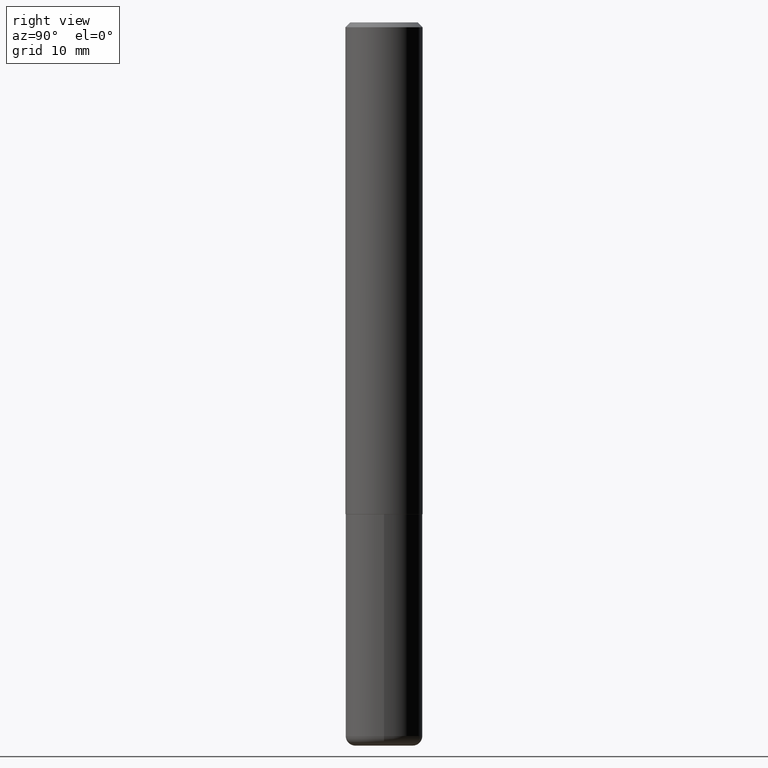
[diagram: clean part render]
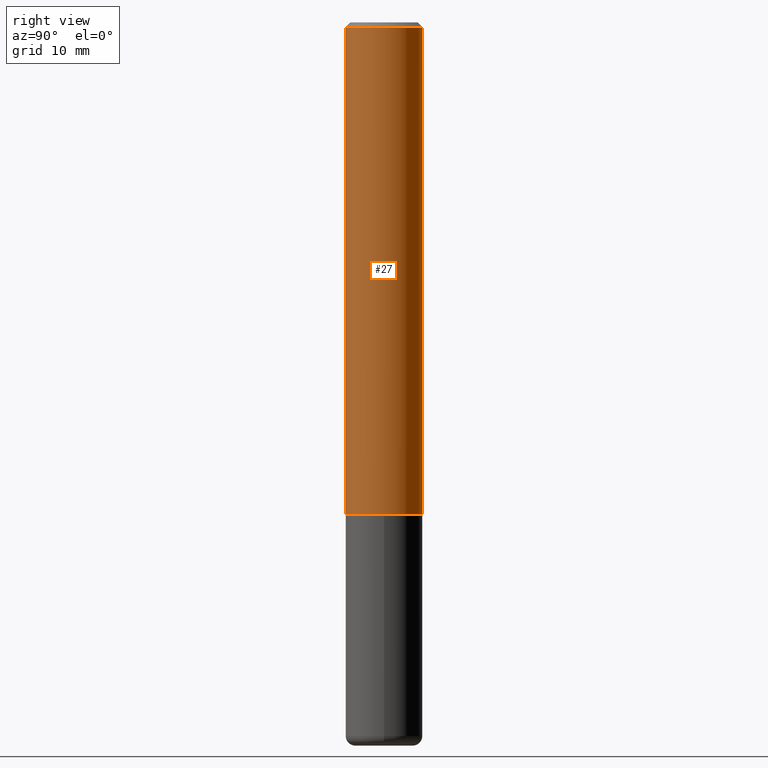
[diagram: same view with one face highlighted and labeled with its STEP entity id]
A machine part, right view. The second image highlights one B-rep face of the part: STEP entity #27.
In plain terms, the highlighted cylindrical surface (partial cylindrical patch) has radius 4.0005 mm, axis along (-0, 0, 1).
Its self-contained STEP definition (entity closure, byte-faithful):
#11 = LINE ( 'NONE', #173, #291 ) ;
#12 = VERTEX_POINT ( 'NONE', #414 ) ;
#25 = EDGE_CURVE ( 'NONE', #12, #211, #407, .T. ) ;
#26 = CARTESIAN_POINT ( 'NONE',  ( 0.000000000000000000, 0.000000000000000000, 0.000000000000000000 ) ) ;
#27 = ADVANCED_FACE ( 'NONE', ( #54 ), #309, .T. ) ;
#37 = ORIENTED_EDGE ( 'NONE', *, *, #248, .F. ) ;
#46 = DIRECTION ( 'NONE',  ( -6.982962677686264344E-15, -1.000000000000000000, 3.496114991891764787E-15 ) ) ;
#50 = CARTESIAN_POINT ( 'NONE',  ( 1.119104808822183439E-15, 0.1574999999999932287, -2.006899999999999906 ) ) ;
#52 = CARTESIAN_POINT ( 'NONE',  ( 4.889459656631096617E-31, -6.985079194424830218E-17, -0.02000000000000003511 ) ) ;
#54 = FACE_OUTER_BOUND ( 'NONE', #390, .T. ) ;
#57 = DIRECTION ( 'NONE',  ( -2.444729828315544280E-29, 3.492539597212409932E-15, 1.000000000000000000 ) ) ;
#72 = CARTESIAN_POINT ( 'NONE',  ( 1.099816621735587480E-15, 0.1574999999999999456, -0.02000000000000058328 ) ) ;
#119 = VECTOR ( 'NONE', #271, 39.37007874015748143 ) ;
#129 = LINE ( 'NONE', #237, #119 ) ;
#153 = VERTEX_POINT ( 'NONE', #232 ) ;
#156 = EDGE_CURVE ( 'NONE', #211, #204, #11, .T. ) ;
#158 = ORIENTED_EDGE ( 'NONE', *, *, #399, .F. ) ;
#168 = AXIS2_PLACEMENT_3D ( 'NONE', #386, #216, #341 ) ;
#173 = CARTESIAN_POINT ( 'NONE',  ( 1.119104808822158392E-15, 0.1575000000000001399, -5.500749865609550376E-16 ) ) ;
#204 = VERTEX_POINT ( 'NONE', #72 ) ;
#211 = VERTEX_POINT ( 'NONE', #50 ) ;
#216 = DIRECTION ( 'NONE',  ( -2.444729828315544280E-29, 3.492539597212409932E-15, 1.000000000000000000 ) ) ;
#232 = CARTESIAN_POINT ( 'NONE',  ( -1.080528434649015779E-15, -0.1575000000000000844, -0.01999999999999948347 ) ) ;
#237 = CARTESIAN_POINT ( 'NONE',  ( -1.099816621735587677E-15, -0.1575000000000001399, 5.500749865609550376E-16 ) ) ;
#248 = EDGE_CURVE ( 'NONE', #12, #153, #129, .T. ) ;
#271 = DIRECTION ( 'NONE',  ( -2.444729828315544280E-29, 3.492539597212410327E-15, 1.000000000000000000 ) ) ;
#291 = VECTOR ( 'NONE', #392, 39.37007874015748143 ) ;
#309 = CYLINDRICAL_SURFACE ( 'NONE', #363, 0.1575000000000001399 ) ;
#313 = AXIS2_PLACEMENT_3D ( 'NONE', #52, #369, #46 ) ;
#319 = DIRECTION ( 'NONE',  ( -6.982962677686265133E-15, -1.000000000000000000, 3.492539597212409932E-15 ) ) ;
#341 = DIRECTION ( 'NONE',  ( -6.982962677686265922E-15, -1.000000000000000000, 3.469013325287948560E-15 ) ) ;
#361 = ORIENTED_EDGE ( 'NONE', *, *, #25, .T. ) ;
#363 = AXIS2_PLACEMENT_3D ( 'NONE', #26, #57, #319 ) ;
#369 = DIRECTION ( 'NONE',  ( -2.444729828315544280E-29, 3.492539597212409932E-15, 1.000000000000000000 ) ) ;
#386 = CARTESIAN_POINT ( 'NONE',  ( 4.906328292446464760E-29, -7.009177717645583542E-15, -2.006899999999999462 ) ) ;
#390 = EDGE_LOOP ( 'NONE', ( #361, #417, #158, #37 ) ) ;
#392 = DIRECTION ( 'NONE',  ( -2.444729828315544280E-29, 3.492539597212410327E-15, 1.000000000000000000 ) ) ;
#399 = EDGE_CURVE ( 'NONE', #153, #204, #415, .T. ) ;
#407 = CIRCLE ( 'NONE', #168, 0.1575000000000002232 ) ;
#414 = CARTESIAN_POINT ( 'NONE',  ( -1.099816621735539360E-15, -0.1575000000000072453, -2.006899999999999018 ) ) ;
#415 = CIRCLE ( 'NONE', #313, 0.1575000000000000289 ) ;
#417 = ORIENTED_EDGE ( 'NONE', *, *, #156, .T. ) ;